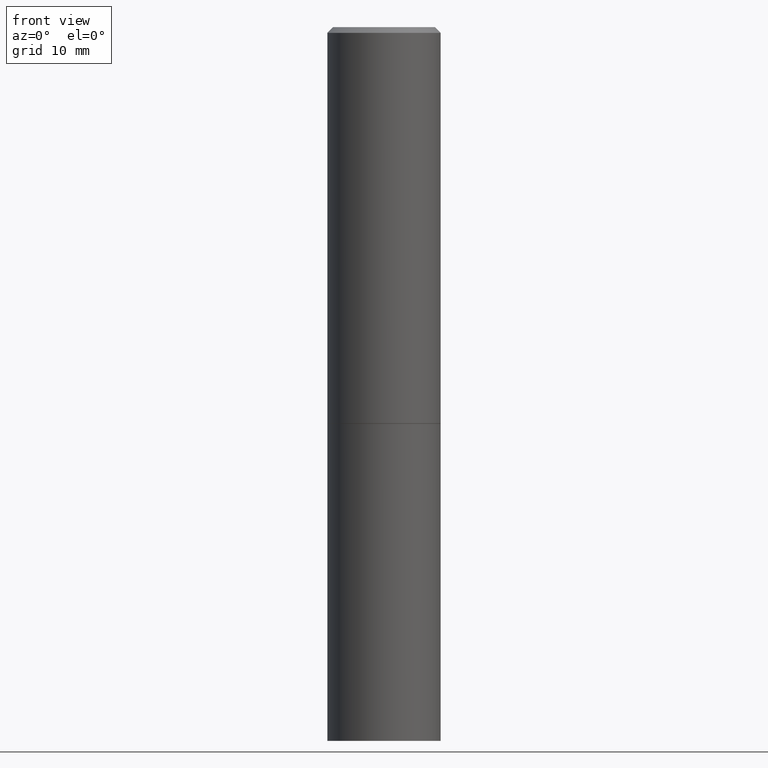
[diagram: clean part render]
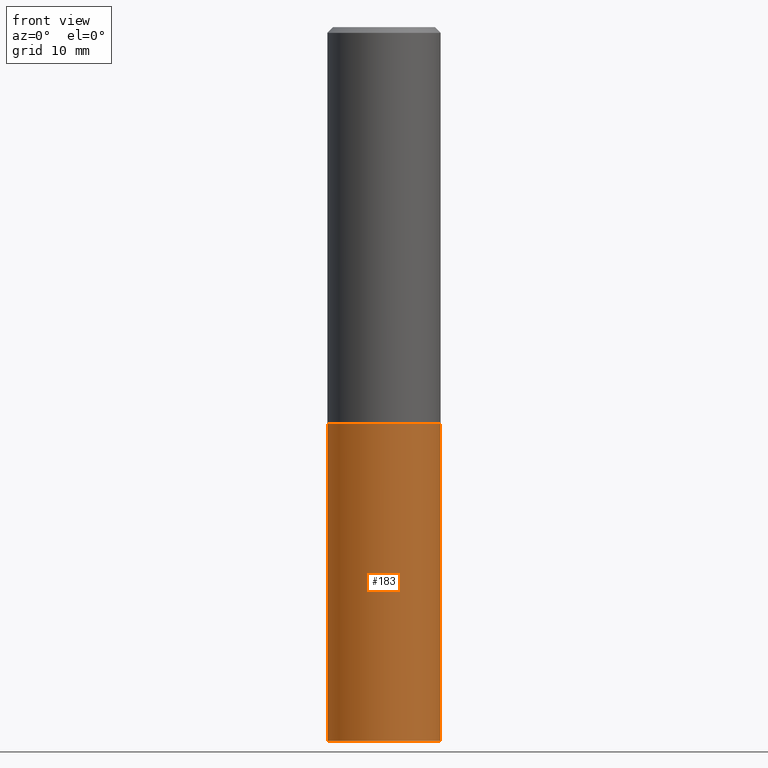
[diagram: same view with one face highlighted and labeled with its STEP entity id]
A machine part, front view. The second image highlights one B-rep face of the part: STEP entity #183.
In plain terms, the highlighted cylindrical surface (partial cylindrical patch) has radius 5 mm, axis along (-0, 0, 1).
Its self-contained STEP definition (entity closure, byte-faithful):
#3 = CARTESIAN_POINT ( 'NONE',  ( 0.1968500000000000250, -1.374596203102541608E-15, 9.598753983154300858E-30 ) ) ;
#12 = CARTESIAN_POINT ( 'NONE',  ( -0.1968500000000000250, 1.398703375343757393E-15, -9.682923725166783677E-30 ) ) ;
#16 = CARTESIAN_POINT ( 'NONE',  ( -0.1968500000000000250, -5.336713275418556283E-15, -2.480300000000000171 ) ) ;
#34 = ORIENTED_EDGE ( 'NONE', *, *, #265, .T. ) ;
#37 = CARTESIAN_POINT ( 'NONE',  ( 0.1968500000000000250, -1.003451736783519694E-14, -2.480300000000000171 ) ) ;
#39 = ORIENTED_EDGE ( 'NONE', *, *, #51, .F. ) ;
#40 = AXIS2_PLACEMENT_3D ( 'NONE', #153, #176, #291 ) ;
#50 = VERTEX_POINT ( 'NONE', #16 ) ;
#51 = EDGE_CURVE ( 'NONE', #50, #284, #272, .T. ) ;
#65 = DIRECTION ( 'NONE',  ( -2.445468806185136597E-29, 3.491481338843145583E-15, 1.000000000000000000 ) ) ;
#84 = CARTESIAN_POINT ( 'NONE',  ( 3.369611468042499724E-29, -4.810912136791970439E-15, -1.377900000000000125 ) ) ;
#88 = CARTESIAN_POINT ( 'NONE',  ( 0.000000000000000000, 0.000000000000000000, 0.000000000000000000 ) ) ;
#90 = LINE ( 'NONE', #3, #149 ) ;
#112 = FACE_OUTER_BOUND ( 'NONE', #217, .T. ) ;
#120 = DIRECTION ( 'NONE',  ( 1.000000000000000000, -6.982962677686267499E-15, 0.000000000000000000 ) ) ;
#127 = DIRECTION ( 'NONE',  ( -2.445468806185136877E-29, 3.491481338843145188E-15, 1.000000000000000000 ) ) ;
#129 = AXIS2_PLACEMENT_3D ( 'NONE', #84, #262, #120 ) ;
#149 = VECTOR ( 'NONE', #366, 39.37007874015748143 ) ;
#152 = CARTESIAN_POINT ( 'NONE',  ( 0.1968500000000000250, -6.185508339894512836E-15, -1.377900000000000125 ) ) ;
#153 = CARTESIAN_POINT ( 'NONE',  ( 6.065496279980994755E-29, -8.659921164732655335E-15, -2.480300000000000171 ) ) ;
#162 = ORIENTED_EDGE ( 'NONE', *, *, #278, .F. ) ;
#176 = DIRECTION ( 'NONE',  ( -2.445468806185136597E-29, 3.491481338843145583E-15, 1.000000000000000000 ) ) ;
#182 = ORIENTED_EDGE ( 'NONE', *, *, #311, .T. ) ;
#183 = ADVANCED_FACE ( 'NONE', ( #112 ), #293, .T. ) ;
#187 = VERTEX_POINT ( 'NONE', #152 ) ;
#197 = CIRCLE ( 'NONE', #129, 0.1968500000000000250 ) ;
#205 = DIRECTION ( 'NONE',  ( 1.000000000000000000, -6.982962677686265922E-15, 4.876176775795935793E-29 ) ) ;
#216 = AXIS2_PLACEMENT_3D ( 'NONE', #88, #65, #205 ) ;
#217 = EDGE_LOOP ( 'NONE', ( #39, #182, #34, #162 ) ) ;
#234 = CARTESIAN_POINT ( 'NONE',  ( -0.1968500000000000250, -5.336713275418556283E-15, -1.377900000000000125 ) ) ;
#262 = DIRECTION ( 'NONE',  ( -2.445468806185136597E-29, 3.491481338843145583E-15, 1.000000000000000000 ) ) ;
#265 = EDGE_CURVE ( 'NONE', #303, #187, #90, .T. ) ;
#272 = LINE ( 'NONE', #12, #295 ) ;
#278 = EDGE_CURVE ( 'NONE', #284, #187, #197, .T. ) ;
#284 = VERTEX_POINT ( 'NONE', #234 ) ;
#291 = DIRECTION ( 'NONE',  ( 1.000000000000000000, -6.982962677686267499E-15, 0.000000000000000000 ) ) ;
#293 = CYLINDRICAL_SURFACE ( 'NONE', #216, 0.1968500000000000250 ) ;
#295 = VECTOR ( 'NONE', #127, 39.37007874015748143 ) ;
#303 = VERTEX_POINT ( 'NONE', #37 ) ;
#311 = EDGE_CURVE ( 'NONE', #50, #303, #358, .T. ) ;
#358 = CIRCLE ( 'NONE', #40, 0.1968500000000000250 ) ;
#366 = DIRECTION ( 'NONE',  ( -2.445468806185136877E-29, 3.491481338843145188E-15, 1.000000000000000000 ) ) ;